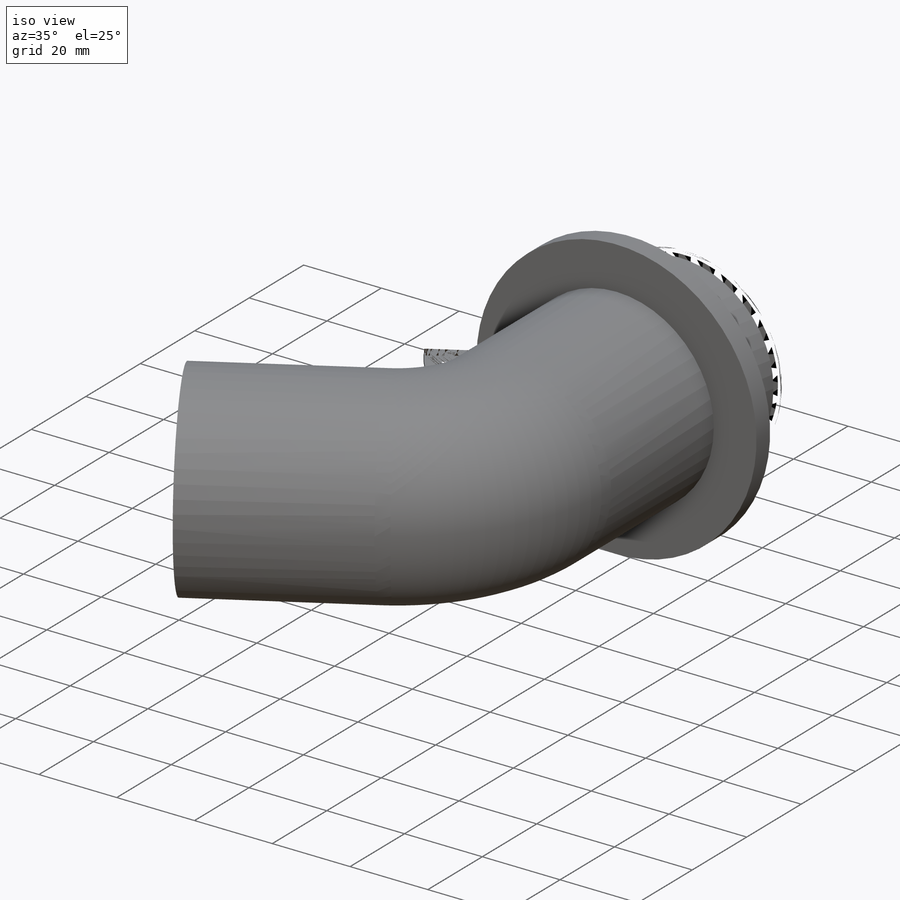
[diagram: iso view]
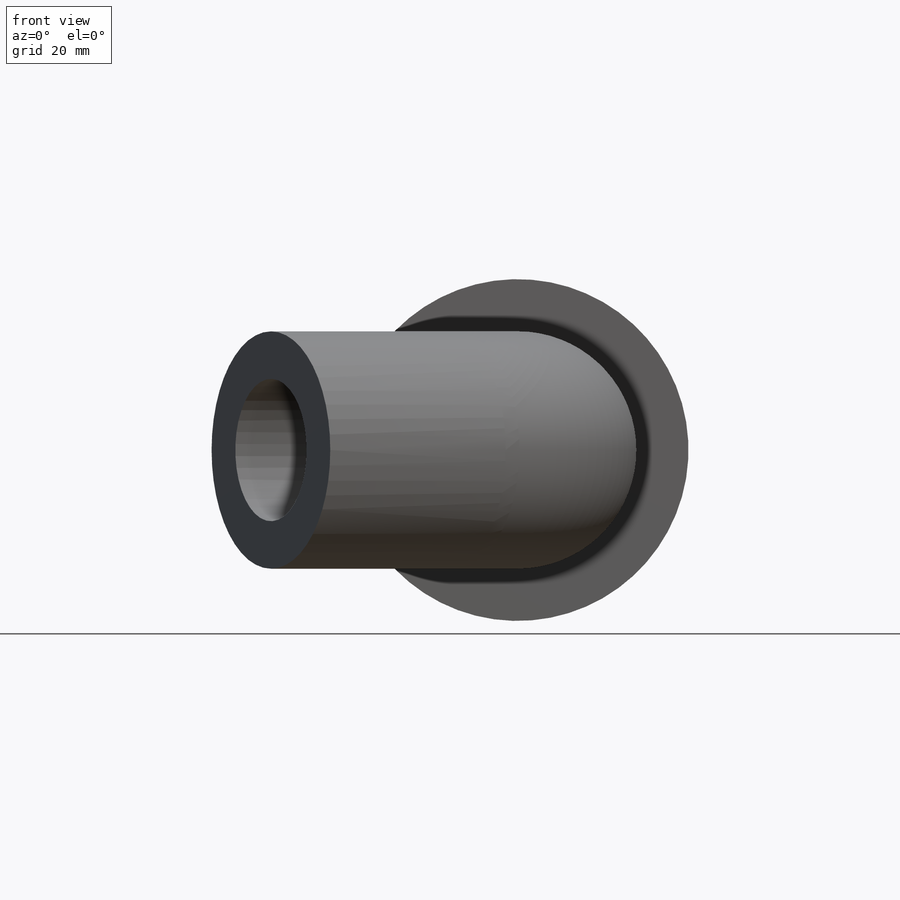
[diagram: front view]
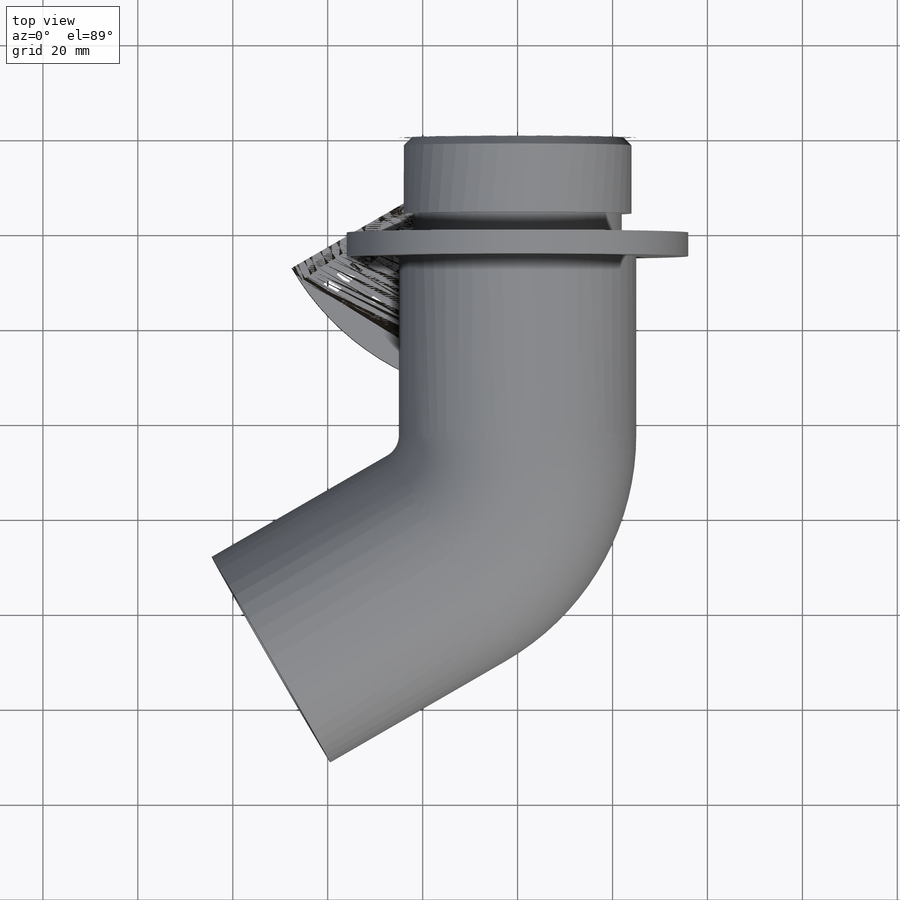
[diagram: top view]
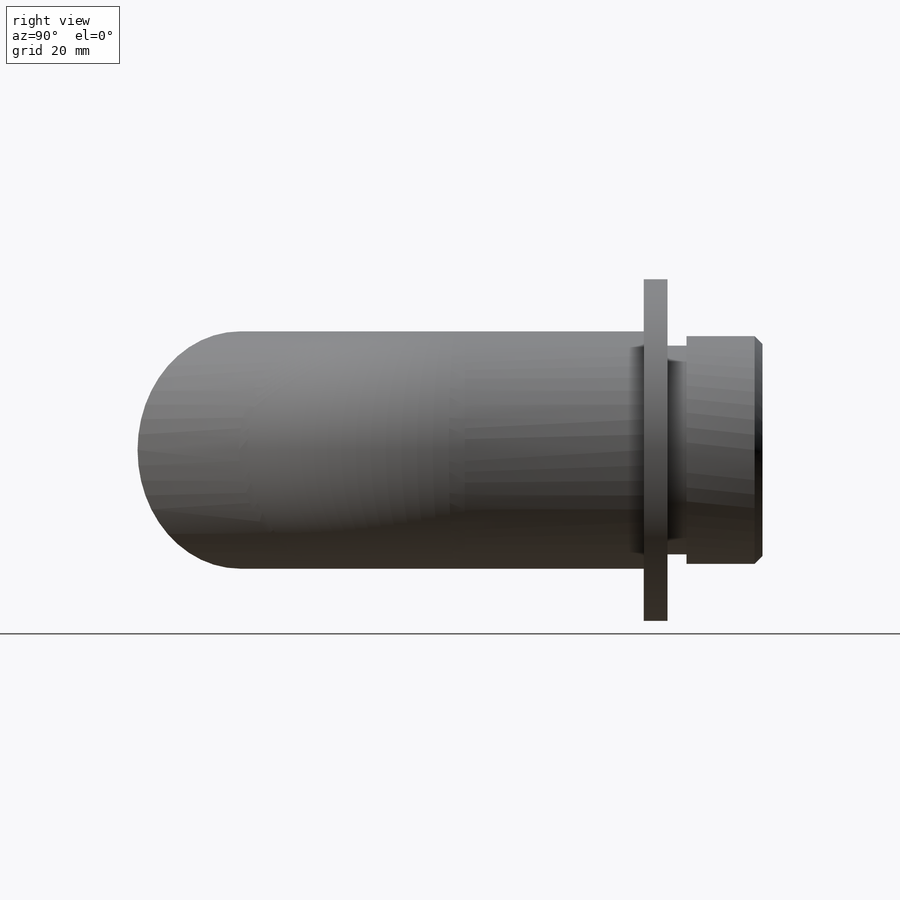
[diagram: right view]
SOLIDWORKS PART (.sldprt)
format: sldprt  version: not decoded by parser v0  size: 406,016 bytes
history: native  units: mm
features: sketch x5, plane x3, material x1, sweep x1, extrude x1, cut_revolve x1, cut_extrude x1, thread x1, chamfer x1 (+9 scaffold rows collapsed)
feature tree (24):
  scaffold x9  (default folders/planes/origin — collapsed)
  material  "Бронза"
  plane  "Спереди"
  plane  "Сверху"
  plane  "Справа"
  sketch  "Эскиз1"  dims[D1=50.0mm D2=30.0mm]
  sketch  "Эскиз2"  dims[c1.D4=30.0mm c1.D1=80.0mm c1.D2=~45.814832mm c2.D2=~139.97499deg c3.D2=~40.494045mm c4.D2=30.0deg c4.D3=60.0mm]
  sweep  "По траектории1"
  sketch  "Эскиз3"  dims[D1=72.0mm]
  extrude  "Бобышка-Вытянуть2"  Depth=5mm
  sketch  "Эскиз4"  dims[D1=44.0mm D2=10.0mm D3=4.0mm]
  cut_revolve  "Вырез-Повернуть1"  Angle=360deg
  sketch  "Эскиз5"  dims[D2=48.0mm D1=0.0mm]
  cut_extrude  "Вырез-Вытянуть1"  [1 undecoded]
  thread  "Условное изображение резьбы1"  Diameter=44.704mm  [1 undecoded]
  chamfer  "Фаска1"  Distance=1.648mm Angle=45deg
decode coverage: 9 of 11 modeling features carry decoded parameters
note: ~ marks probable driven/reference dimensions
note: 2 parameter values undecoded
note: suppression state not decoded; provenance and decode notes live in map.json
